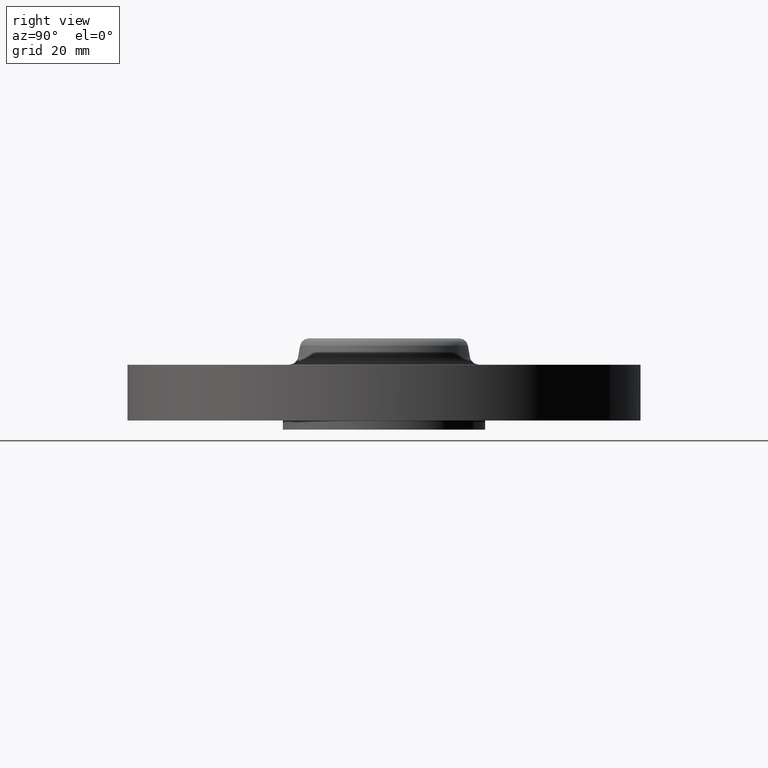
[diagram: clean part render]
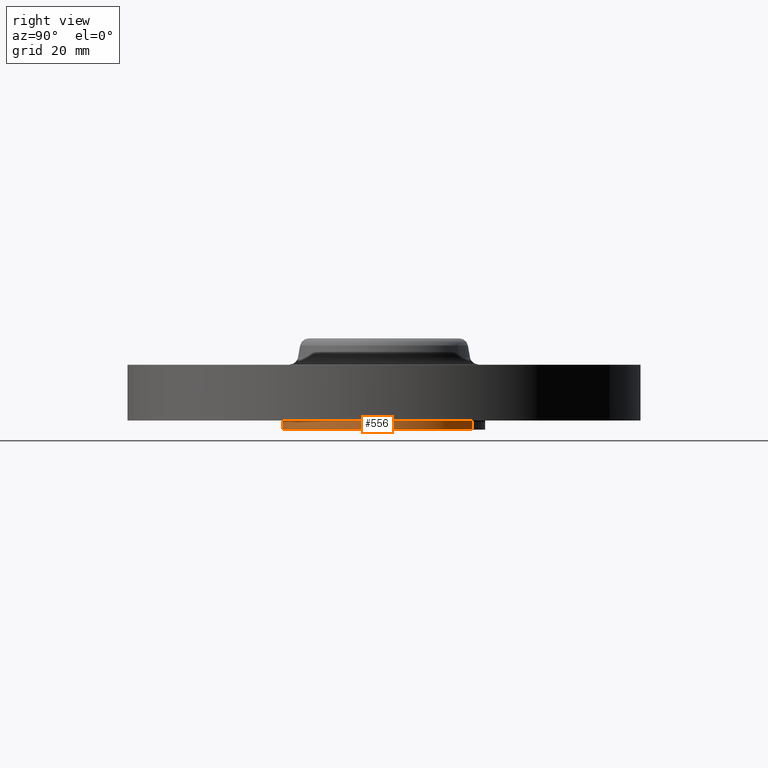
[diagram: same view with one face highlighted and labeled with its STEP entity id]
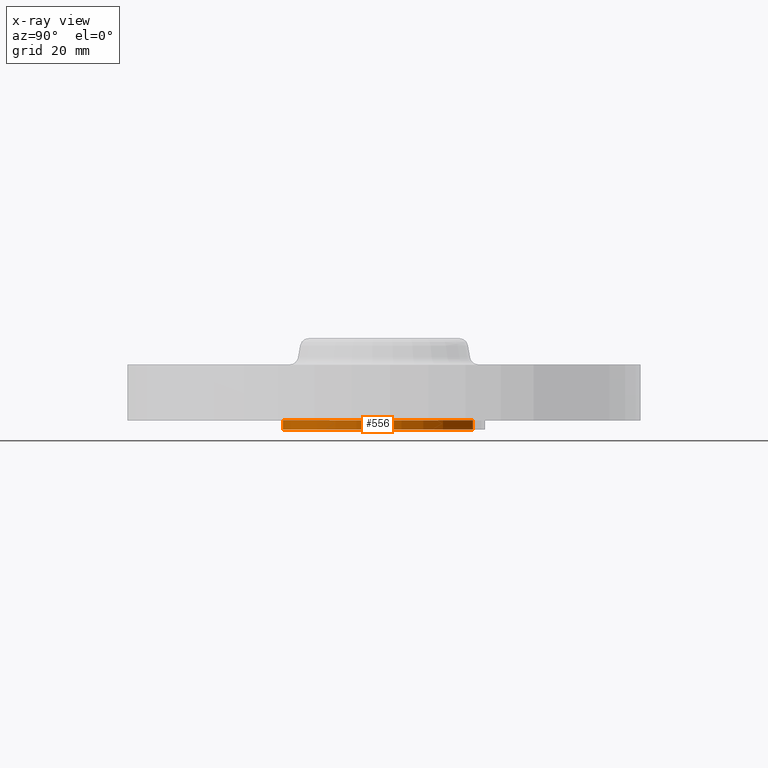
[diagram: x-ray of the same camera — body ghosted, the highlighted face saturated]
A machine part, right view. The second image highlights one B-rep face of the part: STEP entity #556.
The next image is the same camera in x-ray: the body ghosted, the highlighted face saturated — about 0% of this face is hidden behind the body in this view.
In plain terms, the highlighted cylindrical surface (partial cylindrical patch) has radius 17.526 mm, axis along (0, 0, -1).
Its self-contained STEP definition (entity closure, byte-faithful):
#42=AXIS2_PLACEMENT_3D('Circle Axis2P3D',#40,#41,$) ;
#506=AXIS2_PLACEMENT_3D('Circle Axis2P3D',#504,#505,$) ;
#538=AXIS2_PLACEMENT_3D('Cylinder Axis2P3D',#535,#536,#537) ;
#40=CARTESIAN_POINT('Axis2P3D Location',(0.,0.,-0.0625000000003)) ;
#44=CARTESIAN_POINT('Vertex',(0.330803621638,0.605531967707,-0.0625000000002)) ;
#46=CARTESIAN_POINT('Vertex',(-0.330803621638,-0.605531967707,-0.0625000000002)) ;
#504=CARTESIAN_POINT('Axis2P3D Location',(0.,0.,0.)) ;
#508=CARTESIAN_POINT('Vertex',(0.330803621638,0.605531967707,1.04902962957E-016)) ;
#510=CARTESIAN_POINT('Vertex',(-0.330803621638,-0.605531967707,1.04902962957E-016)) ;
#535=CARTESIAN_POINT('Axis2P3D Location',(0.,0.,0.248750000001)) ;
#540=CARTESIAN_POINT('Line Origine',(0.330803621638,0.605531967707,-0.0312500000001)) ;
#545=CARTESIAN_POINT('Line Origine',(-0.330803621638,-0.605531967707,-0.0312500000001)) ;
#41=DIRECTION('Axis2P3D Direction',(0.,0.,-0.0393700787402)) ;
#505=DIRECTION('Axis2P3D Direction',(0.,0.,-0.0393700787402)) ;
#536=DIRECTION('Axis2P3D Direction',(0.,0.,-0.0393700787402)) ;
#537=DIRECTION('Axis2P3D XDirection',(-0.0188750212049,-0.0345504945626,0.)) ;
#541=DIRECTION('Vector Direction',(0.,0.,-0.0393700787402)) ;
#546=DIRECTION('Vector Direction',(0.,0.,-0.0393700787402)) ;
#542=VECTOR('Line Direction',#541,0.0393700787402) ;
#547=VECTOR('Line Direction',#546,0.0393700787402) ;
#551=ORIENTED_EDGE('',*,*,#48,.F.) ;
#552=ORIENTED_EDGE('',*,*,#544,.T.) ;
#553=ORIENTED_EDGE('',*,*,#512,.T.) ;
#554=ORIENTED_EDGE('',*,*,#549,.F.) ;
#556=ADVANCED_FACE('PartBody',(#555),#539,.T.) ;
#43=CIRCLE('generated circle',#42,0.690000000003) ;
#507=CIRCLE('generated circle',#506,0.690000000003) ;
#539=CYLINDRICAL_SURFACE('generated cylinder',#538,0.690000000003) ;
#48=EDGE_CURVE('',#45,#47,#43,.T.) ;
#512=EDGE_CURVE('',#509,#511,#507,.T.) ;
#544=EDGE_CURVE('',#45,#509,#543,.F.) ;
#549=EDGE_CURVE('',#47,#511,#548,.F.) ;
#550=EDGE_LOOP('',(#551,#552,#553,#554)) ;
#555=FACE_OUTER_BOUND('',#550,.T.) ;
#543=LINE('Line',#540,#542) ;
#548=LINE('Line',#545,#547) ;
#45=VERTEX_POINT('',#44) ;
#47=VERTEX_POINT('',#46) ;
#509=VERTEX_POINT('',#508) ;
#511=VERTEX_POINT('',#510) ;